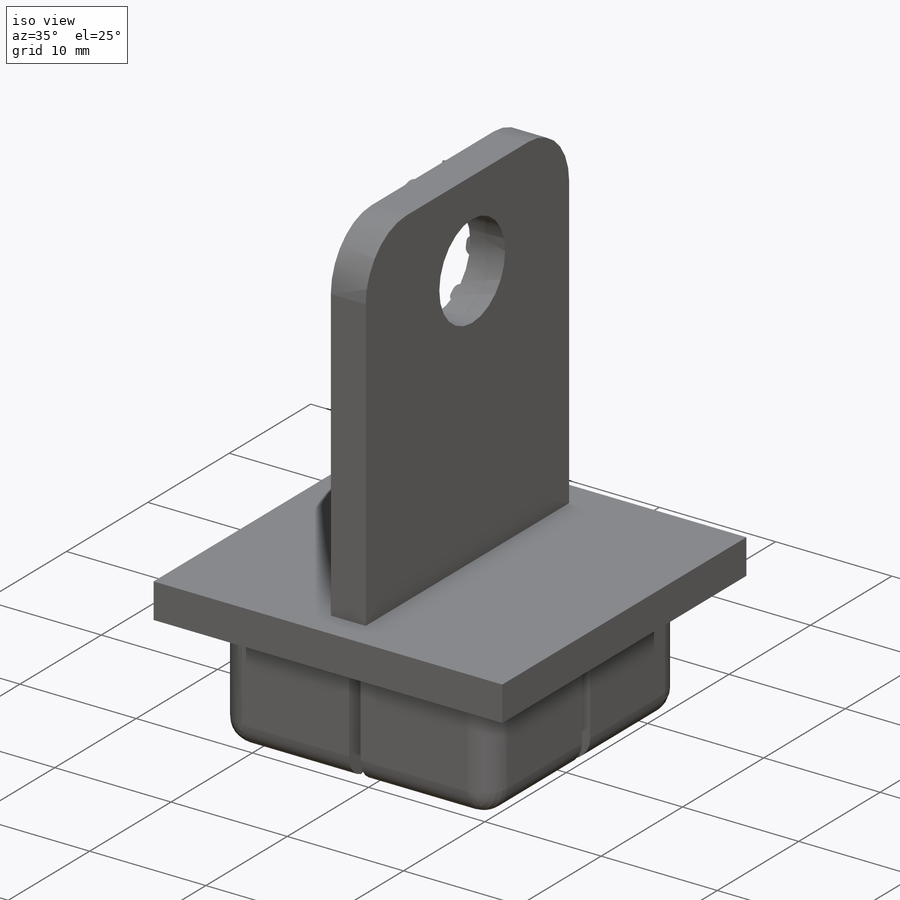
[diagram: iso view]
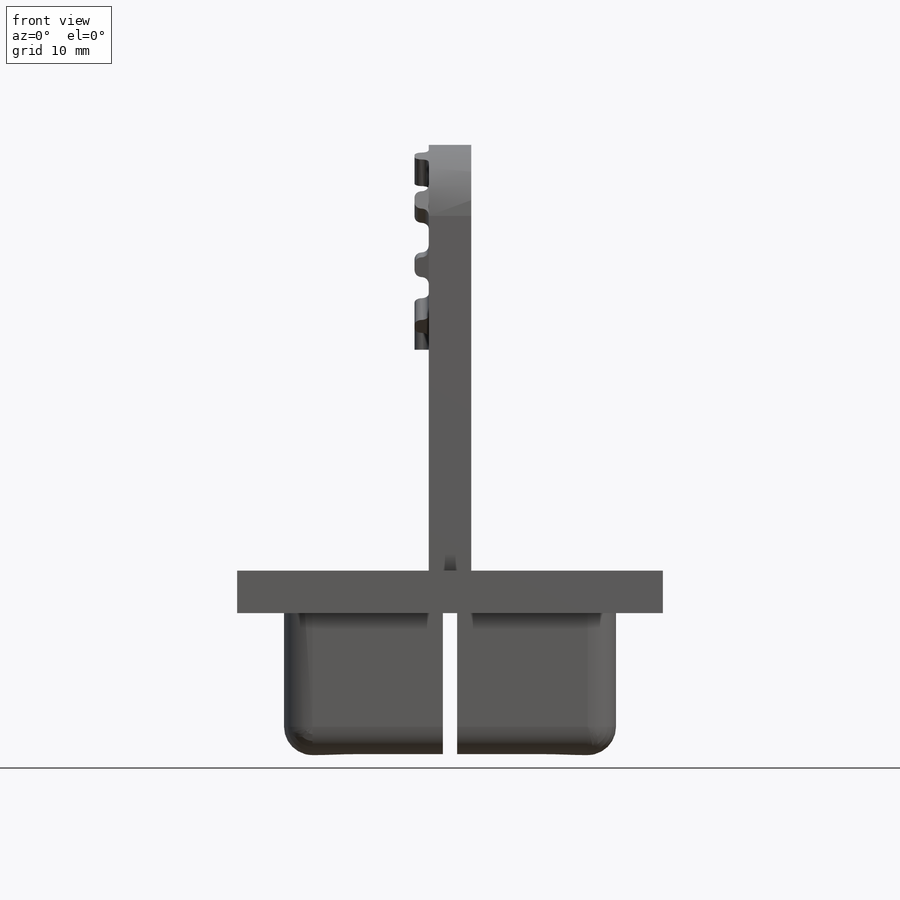
[diagram: front view]
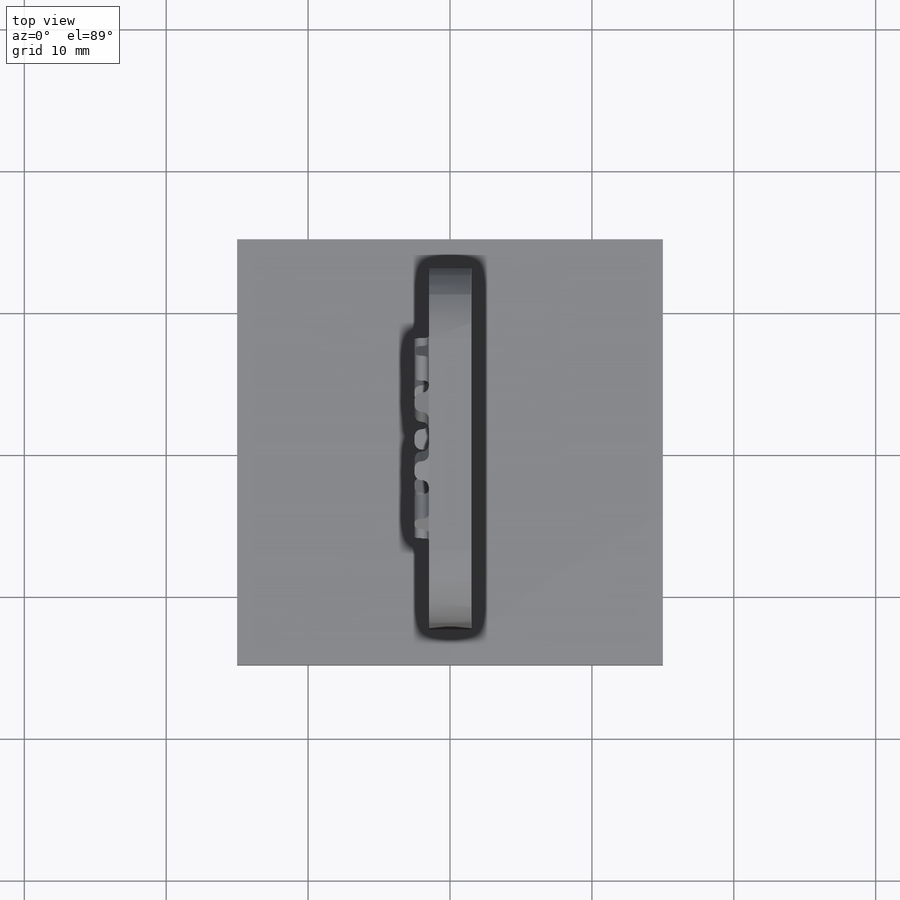
[diagram: top view]
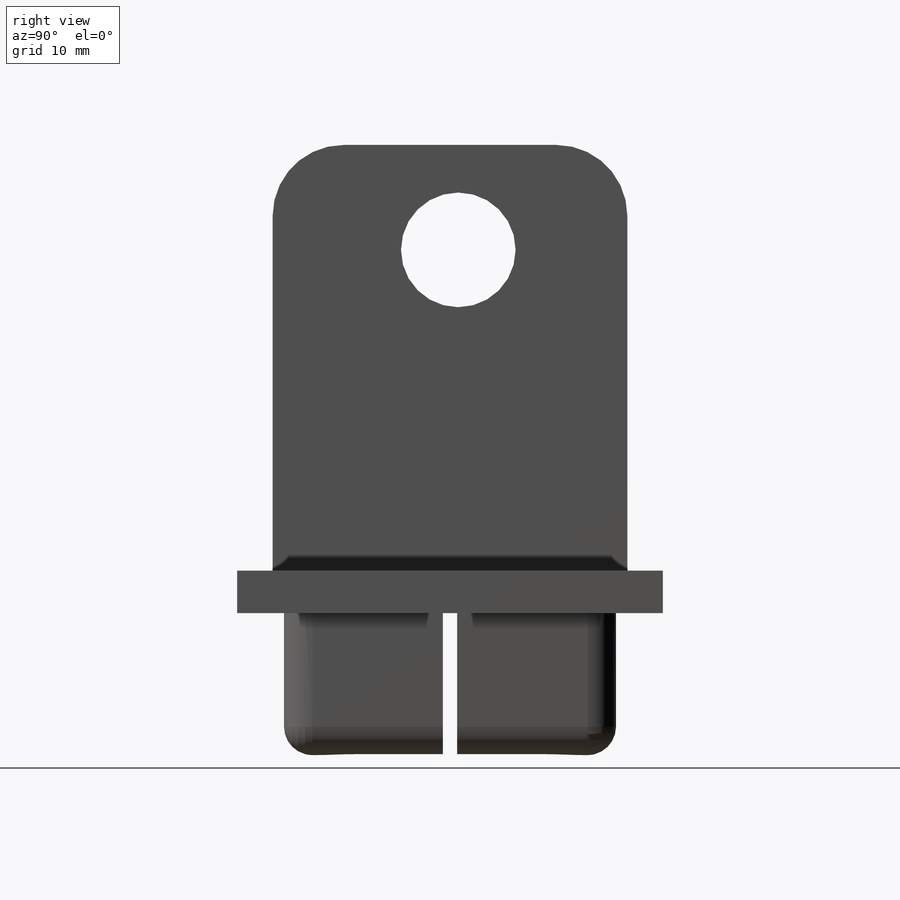
[diagram: right view]
SOLIDWORKS PART (.sldprt)
format: sldprt  version: not decoded by parser v0  size: 370,688 bytes
history: native  units: mm
features: sketch x7, extrude x4, plane x3, cut_extrude x3, fillet x3, material x1, pattern_circular x1 (+8 scaffold rows collapsed)
feature tree (30):
  scaffold x8  (default folders/planes/origin — collapsed)
  material  "Material <sin especificar>"
  plane  "Alzado"
  plane  "Planta"
  plane  "Vista lateral"
  sketch  "Croquis1"  dims[D1=30.0mm D2=30.0mm]
  extrude  "Saliente-Extruir1"  Depth=3mm
  sketch  "Croquis2"  dims[D1=25.0mm D2=3.0mm]
  extrude  "Saliente-Extruir2"  Depth=30mm
  sketch  "Croquis3"
  cut_extrude  "Cortar-Extruir1"  Depth=10mm
  sketch  "Croquis4"  dims[D1=3.0mm D2=3.3mm D3=3.3mm D4=30.0mm]
  extrude  "Saliente-Extruir3"  Depth=10mm
  fillet  "Redondeo1"  Radius=2mm
  fillet  "Redondeo2"  Radius=5mm
  sketch  "Croquis5"  dims[D1=2.0mm D2=2.0mm D3=1.0mm]
  extrude  "Saliente-Extruir4"  Depth=1mm
  fillet  "Redondeo3"  Radius=0.5mm
  pattern_circular  "MatrizC3"  Count=9 Angle=360deg
  sketch  "Croquis6"  dims[D1=1.0mm]
  cut_extrude  "Cortar-Extruir2"  [1 undecoded]
  sketch  "Croquis7"  dims[D1=1.0mm]
  cut_extrude  "Cortar-Extruir3"  [1 undecoded]
decode coverage: 15 of 18 modeling features carry decoded parameters
note: 2 parameter values undecoded
note: suppression state not decoded; provenance and decode notes live in map.json
